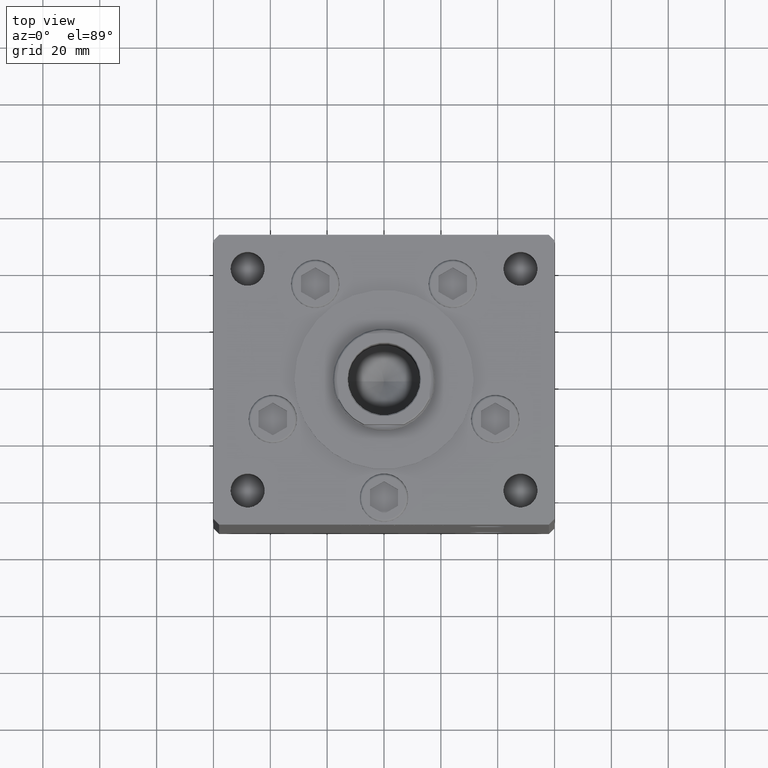
[diagram: clean part render]
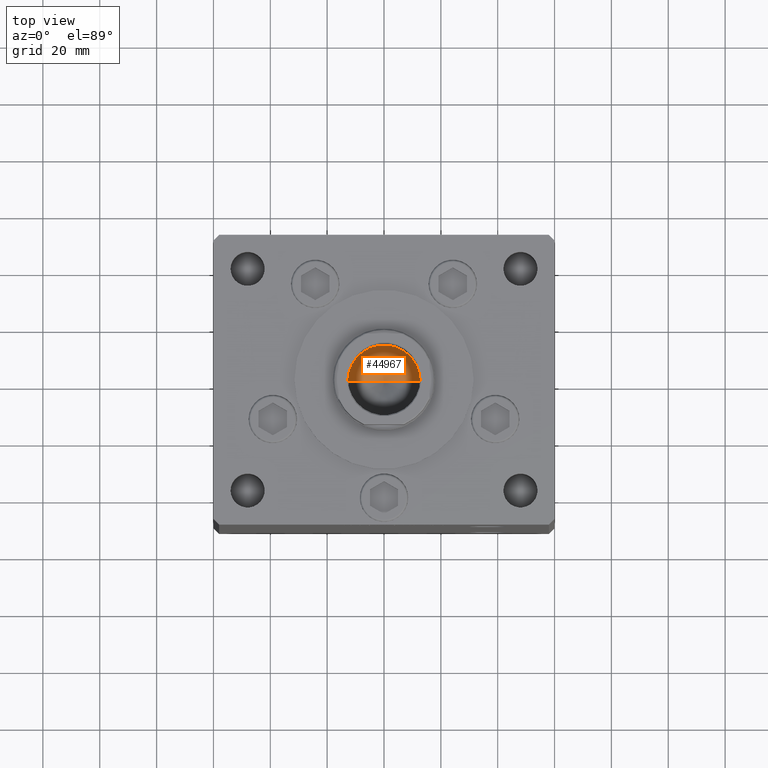
[diagram: same view with one face highlighted and labeled with its STEP entity id]
A machine part, top view. The second image highlights one B-rep face of the part: STEP entity #44967.
In plain terms, the highlighted conical surface has half-angle 59 deg.
Its self-contained STEP definition (entity closure, byte-faithful):
#6516 = DIRECTION ( 'NONE',  ( 0.8571673007021117785, 0.000000000000000000, 0.5150380749100550437 ) ) ;
#7383 = CARTESIAN_POINT ( 'NONE',  ( -12.74999999999999112, 1.561424668912874125E-15, 124.2500000000000142 ) ) ;
#8753 = DIRECTION ( 'NONE',  ( -0.000000000000000000, -0.000000000000000000, 1.000000000000000000 ) ) ;
#10103 = AXIS2_PLACEMENT_3D ( 'NONE', #15790, #23190, #14763 ) ;
#12821 = CARTESIAN_POINT ( 'NONE',  ( -12.74999999999999112, 1.561424668912874125E-15, 124.2500000000000142 ) ) ;
#12849 = VECTOR ( 'NONE', #31107, 1000.000000000000000 ) ;
#13072 = CARTESIAN_POINT ( 'NONE',  ( -1.307202896762960287E-14, 0.000000000000000000, 116.5890271073986213 ) ) ;
#13849 = EDGE_LOOP ( 'NONE', ( #35697, #40791, #46305 ) ) ;
#14763 = DIRECTION ( 'NONE',  ( 1.000000000000000000, 0.000000000000000000, 0.000000000000000000 ) ) ;
#15790 = CARTESIAN_POINT ( 'NONE',  ( 0.000000000000000000, 0.000000000000000000, 124.2500000000000142 ) ) ;
#20044 = VERTEX_POINT ( 'NONE', #12821 ) ;
#20848 = CARTESIAN_POINT ( 'NONE',  ( 0.000000000000000000, 0.000000000000000000, 124.2500000000000142 ) ) ;
#21116 = DIRECTION ( 'NONE',  ( 1.000000000000000000, 0.000000000000000000, 0.000000000000000000 ) ) ;
#22579 = LINE ( 'NONE', #37888, #40411 ) ;
#23190 = DIRECTION ( 'NONE',  ( -0.000000000000000000, -0.000000000000000000, 1.000000000000000000 ) ) ;
#23444 = LINE ( 'NONE', #7383, #12849 ) ;
#29292 = FACE_OUTER_BOUND ( 'NONE', #13849, .T. ) ;
#31107 = DIRECTION ( 'NONE',  ( -0.8571673007021117785, 1.049727191138617956E-16, 0.5150380749100550437 ) ) ;
#31780 = EDGE_CURVE ( 'NONE', #38965, #20044, #23444, .T. ) ;
#35697 = ORIENTED_EDGE ( 'NONE', *, *, #31780, .F. ) ;
#37835 = CONICAL_SURFACE ( 'NONE', #50441, 12.74999999999999112, 1.029744258676653423 ) ;
#37888 = CARTESIAN_POINT ( 'NONE',  ( 12.74999999999999112, 0.000000000000000000, 124.2500000000000142 ) ) ;
#38965 = VERTEX_POINT ( 'NONE', #13072 ) ;
#40325 = CARTESIAN_POINT ( 'NONE',  ( 12.74999999999999112, 0.000000000000000000, 124.2500000000000142 ) ) ;
#40411 = VECTOR ( 'NONE', #6516, 1000.000000000000000 ) ;
#40791 = ORIENTED_EDGE ( 'NONE', *, *, #42463, .T. ) ;
#42463 = EDGE_CURVE ( 'NONE', #38965, #49442, #22579, .T. ) ;
#44967 = ADVANCED_FACE ( 'NONE', ( #29292 ), #37835, .F. ) ;
#46292 = CIRCLE ( 'NONE', #10103, 12.74999999999999112 ) ;
#46305 = ORIENTED_EDGE ( 'NONE', *, *, #47738, .T. ) ;
#47738 = EDGE_CURVE ( 'NONE', #49442, #20044, #46292, .T. ) ;
#49442 = VERTEX_POINT ( 'NONE', #40325 ) ;
#50441 = AXIS2_PLACEMENT_3D ( 'NONE', #20848, #8753, #21116 ) ;